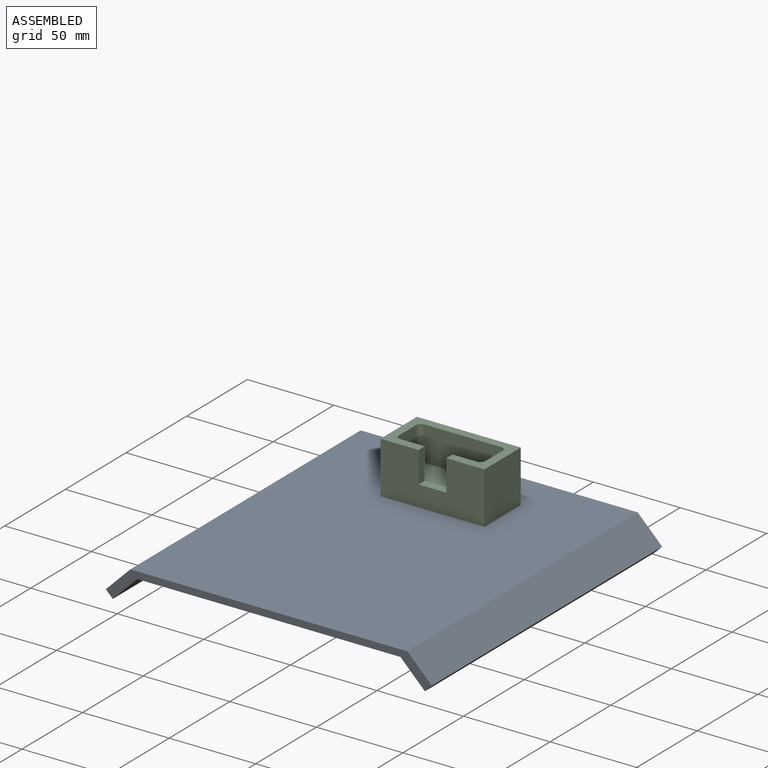
[diagram: assembled view]
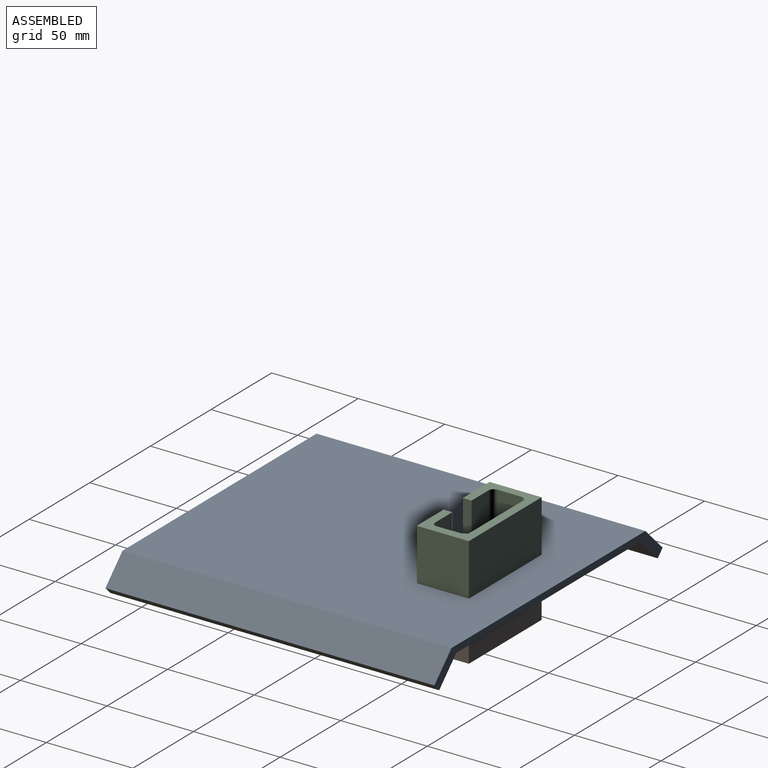
[diagram: assembled view, second angle]
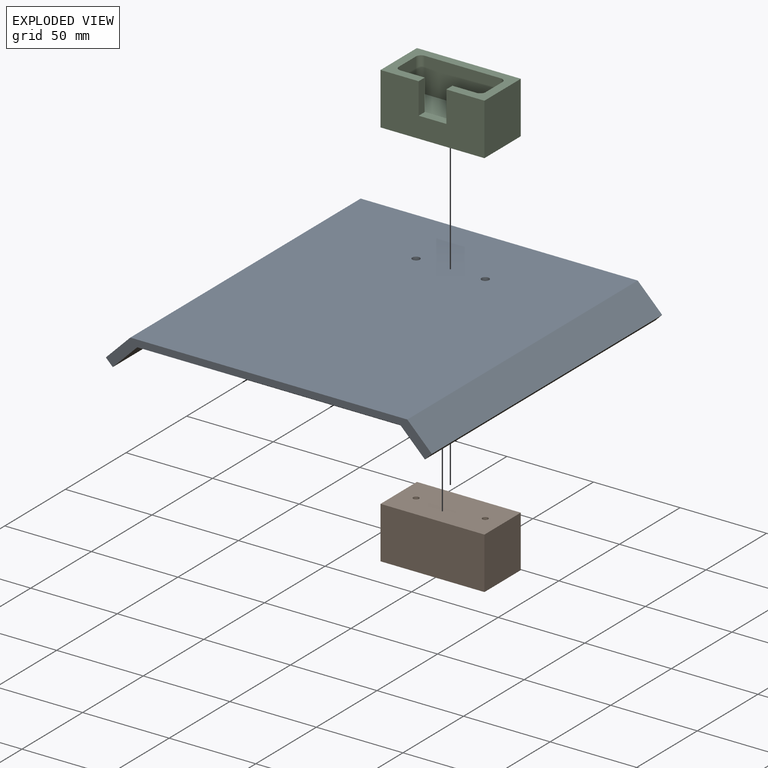
[diagram: exploded view]
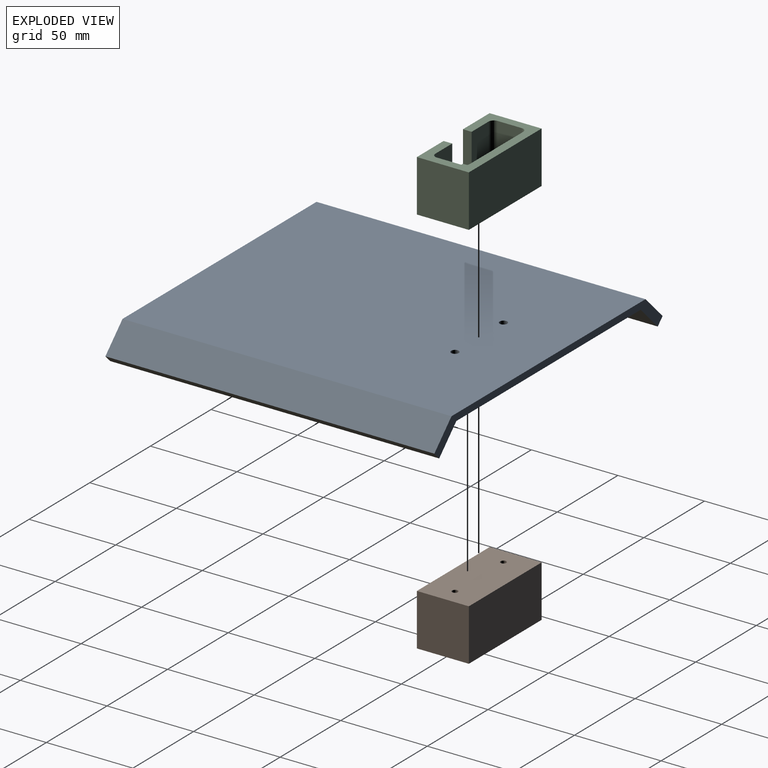
[diagram: exploded view, second angle]
ASSEMBLY  parts=3 mates=2
PART A: 12 faces, bbox 188.3x190x18.1 mm
  f0: plane 188.28x18.14mm, normal (0,1,0), area 850.3mm2, adj f2,f3,f4,f5,f6,f7,f8,f9
  f1: plane 188.28x18.14mm, normal (0,-1,0), area 850.3mm2, adj f2,f3,f4,f5,f6,f7,f8,f9
  f2: plane 190x160mm, normal (0,0,1), area 30369.6mm2, adj f0,f1,f5,f7,f10,f11
  f3: plane 190x152mm, normal (0,0,-1), area 28849.6mm2, adj f0,f1,f4,f8,f10,f11
  f4: plane 190x14.14mm, normal (-0.71,0,-0.71), area 3800mm2, adj f0,f1,f3,f6
  f5: plane 190x14.14mm, normal (0.71,0,0.71), area 3800mm2, adj f0,f1,f2,f6
  f6: plane 190x4mm, normal (0.71,0,-0.71), area 1074.8mm2, adj f0,f1,f4,f5
  f7: plane 190x14.14mm, normal (-0.71,0,0.71), area 3800mm2, adj f0,f1,f2,f9
  f8: plane 190x14.14mm, normal (0.71,0,-0.71), area 3800mm2, adj f0,f1,f3,f9
  f9: plane 190x4mm, normal (-0.71,0,-0.71), area 1074.8mm2, adj f0,f1,f7,f8
  f10: cylinder r=2.2mm len=4.4mm, axis (0,0,-1), area 55.3mm2, adj f2,f3
  f11: cylinder r=2.2mm len=4.4mm, axis (0,0,-1), area 55.3mm2, adj f2,f3
PART B: 17 faces, bbox 60x30x30 mm
  f0: plane 30x30mm, normal (-1,0,0), area 900mm2, adj f1,f3,f4,f5
  f1: plane 60x30mm, normal (0,1,0), area 1800mm2, adj f0,f2,f4,f5
  f2: plane 30x30mm, normal (1,0,0), area 900mm2, adj f1,f3,f4,f5
  f3: plane 60x30mm, normal (0,-1,0), area 1800mm2, adj f0,f2,f4,f5
  f4: plane 60x30mm, normal (0,0,-1), area 807.7mm2, adj f0,f1,f2,f3,f6,f7,f8,f9
  f5: plane 60x30mm, normal (0,0,1), area 1782.9mm2, adj f0,f1,f2,f3,f11,f12
  f6: plane 20x14mm, normal (-1,0,0), area 280mm2, adj f4,f10,f13,f16
  f7: plane 44x20mm, normal (0,1,0), area 880mm2, adj f4,f10,f13,f14
  f8: plane 20x14mm, normal (1,0,0), area 280mm2, adj f4,f10,f14,f15
  f9: plane 44x20mm, normal (0,-1,0), area 880mm2, adj f4,f10,f15,f16
  f10: plane 50x20mm, normal (0,0,-1), area 975.2mm2, adj f6,f7,f8,f9,f11,f12,f13,f14
  f11: cylinder r=1.65mm len=10mm, axis (0,0,1), area 103.7mm2, adj f5,f10
  f12: cylinder r=1.65mm len=10mm, axis (0,0,1), area 103.7mm2, adj f5,f10
  f13: cylinder r=3mm len=20mm, axis (0,0,1), area 94.2mm2, adj f4,f6,f7,f10
  f14: cylinder r=3mm len=20mm, axis (0,0,-1), area 94.2mm2, adj f4,f7,f8,f10
  f15: cylinder r=3mm len=20mm, axis (0,0,1), area 94.2mm2, adj f4,f8,f9,f10
  f16: cylinder r=3mm len=20mm, axis (0,0,-1), area 94.2mm2, adj f4,f6,f9,f10
PART C: 24 faces, bbox 60x30x30 mm
  f0: cylinder r=1.65mm len=3.74mm, axis (0,0,1), area 38.8mm2, adj f7,f19
  f1: cylinder r=1.65mm len=3.74mm, axis (0,0,1), area 38.8mm2, adj f7,f17
  f2: plane 60x30mm, normal (0,0,-1), area 727.7mm2, adj f3,f4,f5,f6,f8,f9,f10,f11
  f3: plane 60x30mm, normal (0,-1,0), area 1512mm2, adj f2,f4,f6,f7,f13,f14,f15
  f4: plane 30x30mm, normal (-1,0,0), area 900mm2, adj f2,f3,f5,f7
  f5: plane 60x30mm, normal (0,1,0), area 1800mm2, adj f2,f4,f6,f7
  f6: plane 30x30mm, normal (1,0,0), area 900mm2, adj f2,f3,f5,f7
  f7: plane 60x30mm, normal (0,0,1), area 1782.9mm2, adj f0,f1,f3,f4,f5,f6
  f8: plane 20x14mm, normal (-1,0,0), area 280mm2, adj f2,f12,f22,f23
  f9: plane 44x20mm, normal (0,1,0), area 592mm2, adj f2,f12,f13,f14,f15,f20,f23
  f10: plane 20x14mm, normal (1,0,0), area 280mm2, adj f2,f12,f20,f21
  f11: plane 44x20mm, normal (0,-1,0), area 880mm2, adj f2,f12,f21,f22
  f12: plane 50x20mm, normal (0,0,-1), area 903.9mm2, adj f8,f9,f10,f11,f16,f18,f20,f21
  f13: plane 18x5mm, normal (1,0,0), area 90mm2, adj f2,f3,f9,f15
  f14: plane 18x5mm, normal (-1,0,0), area 90mm2, adj f2,f3,f9,f15
  f15: plane 16x5mm, normal (0,0,-1), area 80mm2, adj f3,f9,f13,f14
  f16: cylinder r=3.75mm len=7.5mm, axis (0,0,-1), area 117.8mm2, adj f12,f17
  f17: cone r=0mm half-angle=59deg, axis (0,0,-1), area 41.6mm2, adj f1,f16
  f18: cylinder r=3.75mm len=7.5mm, axis (0,0,-1), area 117.8mm2, adj f12,f19
  f19: cone r=0mm half-angle=59deg, axis (0,0,-1), area 41.6mm2, adj f0,f18
  f20: cylinder r=3mm len=20mm, axis (0,0,-1), area 94.2mm2, adj f2,f9,f10,f12
  f21: cylinder r=3mm len=20mm, axis (0,0,1), area 94.2mm2, adj f2,f10,f11,f12
  f22: cylinder r=3mm len=20mm, axis (0,0,-1), area 94.2mm2, adj f2,f8,f11,f12
  f23: cylinder r=3mm len=20mm, axis (0,0,1), area 94.2mm2, adj f2,f8,f9,f12
PLACE A t=(-16.06,128.75,40.08)mm
PLACE B t=(-16.06,18.75,40.08)mm
PLACE C rot(axis=(0,-1,0),180deg) t=(83.94,18.75,44.08)mm
MATE fastened C.f0 <-> A.f11  axis (0,0,-1) through (3.94,183.75,44.08)mm
MATE fastened B.f11 <-> A.f10  axis (0,0,1) through (-36.06,183.75,40.08)mm
